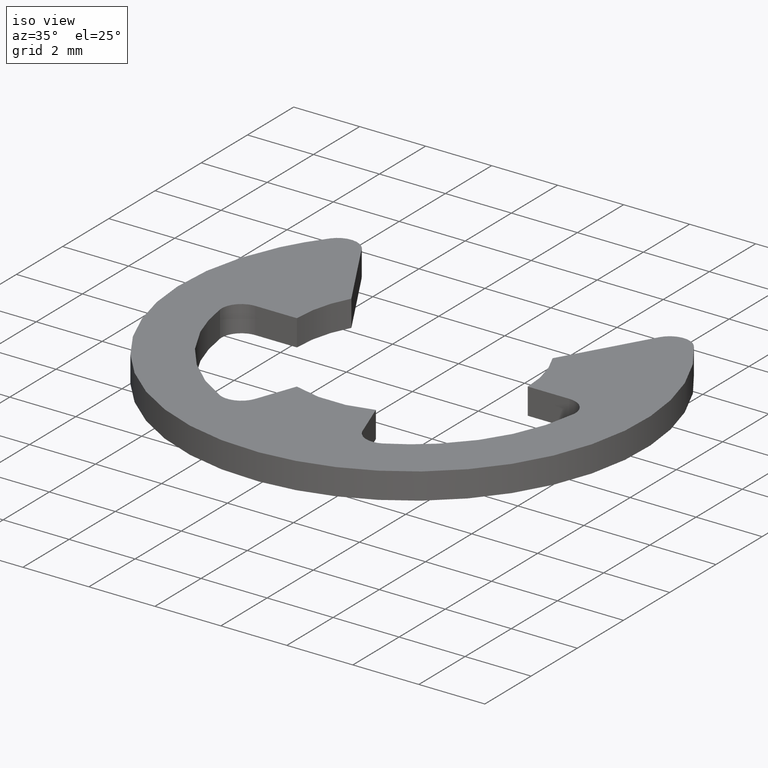
[diagram: clean part render]
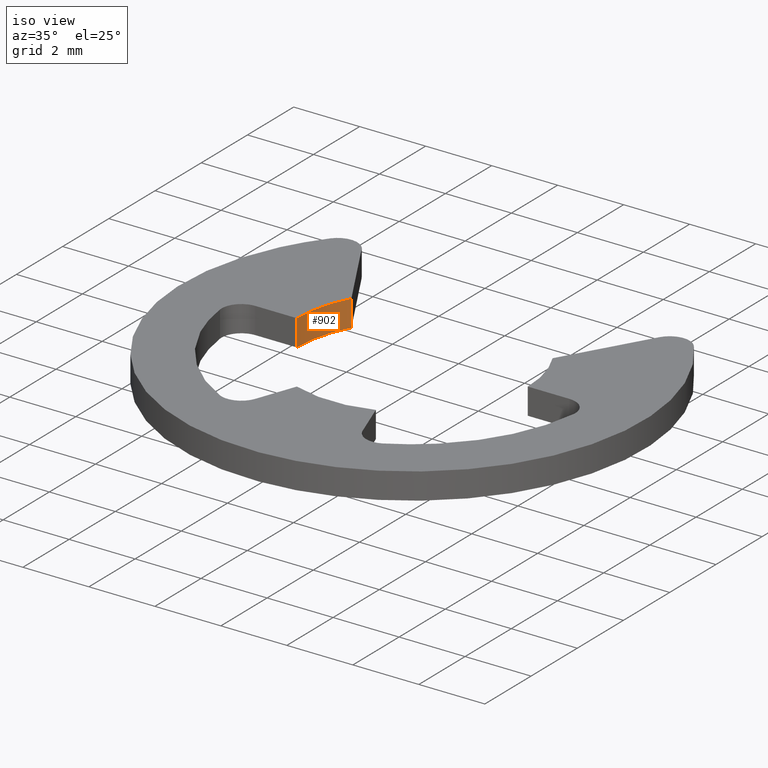
[diagram: same view with one face highlighted and labeled with its STEP entity id]
A machine part, iso view. The second image highlights one B-rep face of the part: STEP entity #902.
In plain terms, the highlighted face is a freeform B-spline surface patch.
Its self-contained STEP definition (entity closure, byte-faithful):
#68=CARTESIAN_POINT('',(-3.050001544194635,1.716825728025515,0.0));
#69=VERTEX_POINT('',#68);
#75=CARTESIAN_POINT('',(-3.500000000000000,0.0,0.0));
#76=VERTEX_POINT('',#75);
#77=CARTESIAN_POINT('',(-3.500000000000000,0.0,0.0));
#78=CARTESIAN_POINT('',(-3.500000000000000,0.917387577322797,0.0));
#79=CARTESIAN_POINT('',(-3.050001544194636,1.716825728025514,0.0));
#87=(BOUNDED_CURVE()B_SPLINE_CURVE(2,(#77,#78,#79),.UNSPECIFIED.,.F.,.U.)CURVE()GEOMETRIC_REPRESENTATION_ITEM()QUASI_UNIFORM_CURVE()RATIONAL_B_SPLINE_CURVE((1.0,0.967323372153035,1.0))REPRESENTATION_ITEM(''));
#88=EDGE_CURVE('',#76,#69,#87,.T.);
#506=CARTESIAN_POINT('',(-3.500000000000000,0.0,0.799988000000140));
#507=VERTEX_POINT('',#506);
#513=CARTESIAN_POINT('',(-3.050001544194635,1.716825728025515,0.799988000000140));
#514=VERTEX_POINT('',#513);
#515=CARTESIAN_POINT('',(-3.500000000000000,0.0,0.799988000000140));
#516=CARTESIAN_POINT('',(-3.500000000000000,0.917387577322797,0.799988000000140));
#517=CARTESIAN_POINT('',(-3.050001544194636,1.716825728025514,0.799988000000140));
#525=(BOUNDED_CURVE()B_SPLINE_CURVE(2,(#515,#516,#517),.UNSPECIFIED.,.F.,.U.)CURVE()GEOMETRIC_REPRESENTATION_ITEM()QUASI_UNIFORM_CURVE()RATIONAL_B_SPLINE_CURVE((1.0,0.967323372153035,1.0))REPRESENTATION_ITEM(''));
#526=EDGE_CURVE('',#507,#514,#525,.T.);
#868=CARTESIAN_POINT('',(-3.500000000000000,0.0,0.799988000000140));
#869=CARTESIAN_POINT('',(-3.500000000000000,0.0,0.0));
#870=QUASI_UNIFORM_CURVE('',1,(#868,#869),.UNSPECIFIED.,.F.,.U.);
#871=EDGE_CURVE('',#507,#76,#870,.T.);
#878=CARTESIAN_POINT('',(-3.005705226857384,1.793247358632432,0.819987700000143));
#879=CARTESIAN_POINT('',(-3.005705226857384,1.793247358632432,-0.020499692500004));
#880=CARTESIAN_POINT('',(-3.524528953920588,0.923634373706161,0.819987700000144));
#881=CARTESIAN_POINT('',(-3.524528953920588,0.923634373706161,-0.020499692500004));
#882=CARTESIAN_POINT('',(-3.498876791574503,-0.088663393693878,0.819987700000144));
#883=CARTESIAN_POINT('',(-3.498876791574503,-0.088663393693878,-0.020499692500004));
#891=(BOUNDED_SURFACE()B_SPLINE_SURFACE(1,2,((#878,#880,#882),(#879,#881,#883)),.UNSPECIFIED.,.F.,.F.,.U.)B_SPLINE_SURFACE_WITH_KNOTS((2,2),(3,3),(0.0,1.0),(0.0,1.984548002568054),.UNSPECIFIED.)GEOMETRIC_REPRESENTATION_ITEM()RATIONAL_B_SPLINE_SURFACE(((0.999859492961420,0.958546139597887,0.995861068607226),(0.999859492961420,0.958546139597887,0.995861068607226)))REPRESENTATION_ITEM('')SURFACE());
#892=ORIENTED_EDGE('',*,*,#88,.T.);
#893=CARTESIAN_POINT('',(-3.050001544194635,1.716825728025515,0.799988000000140));
#894=CARTESIAN_POINT('',(-3.050001544194635,1.716825728025515,0.0));
#895=QUASI_UNIFORM_CURVE('',1,(#893,#894),.UNSPECIFIED.,.F.,.U.);
#896=EDGE_CURVE('',#514,#69,#895,.T.);
#897=ORIENTED_EDGE('',*,*,#896,.F.);
#898=ORIENTED_EDGE('',*,*,#526,.F.);
#899=ORIENTED_EDGE('',*,*,#871,.T.);
#900=EDGE_LOOP('',(#892,#897,#898,#899));
#901=FACE_OUTER_BOUND('',#900,.T.);
#902=ADVANCED_FACE('',(#901),#891,.F.);